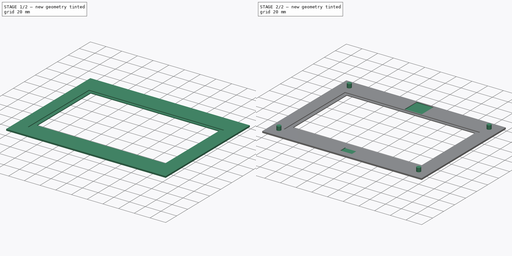
[diagram: build sequence overview — one tinted view per stage of 2, left to right]
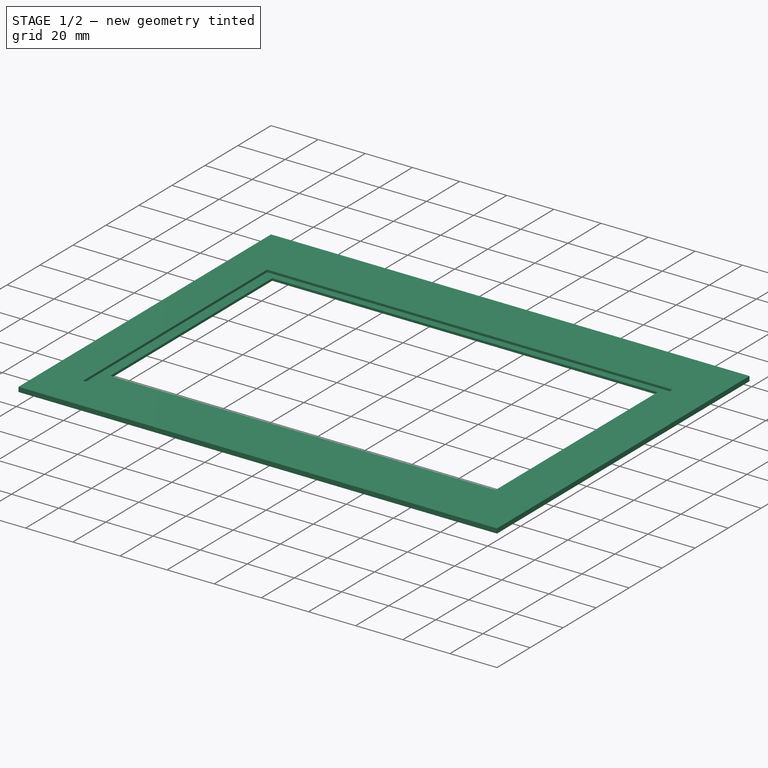
[diagram: stage 1 of 2 — iso view after this stage's code; geometry added in this stage tinted green]
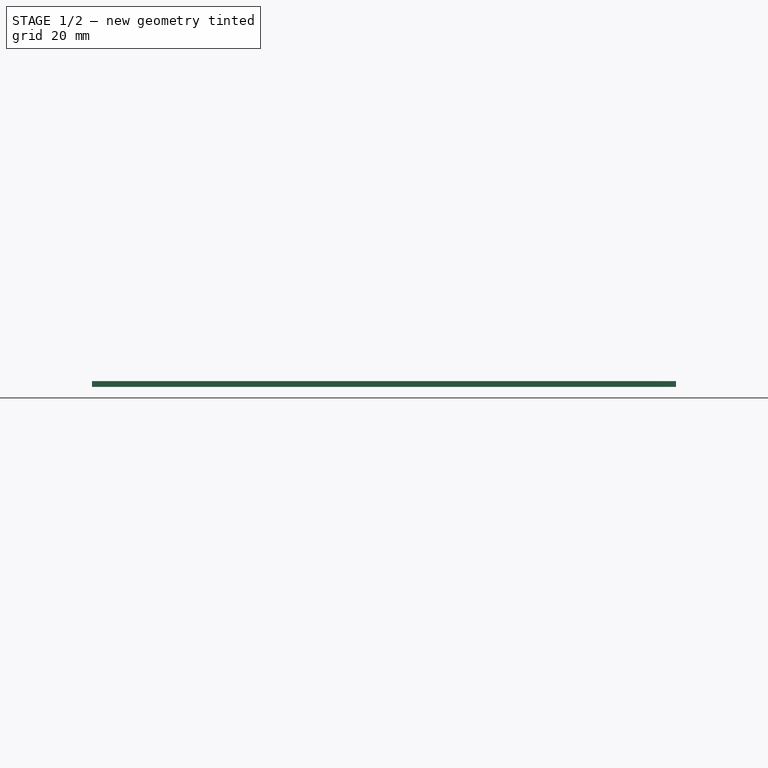
[diagram: stage 1 of 2 — front view after this stage's code; geometry added in this stage tinted green]
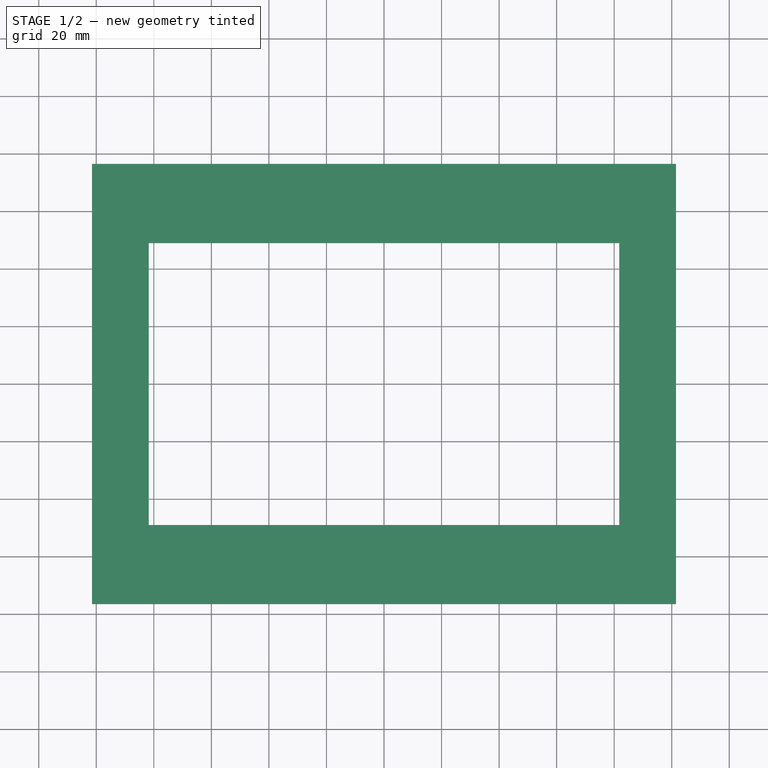
[diagram: stage 1 of 2 — top view after this stage's code; geometry added in this stage tinted green]
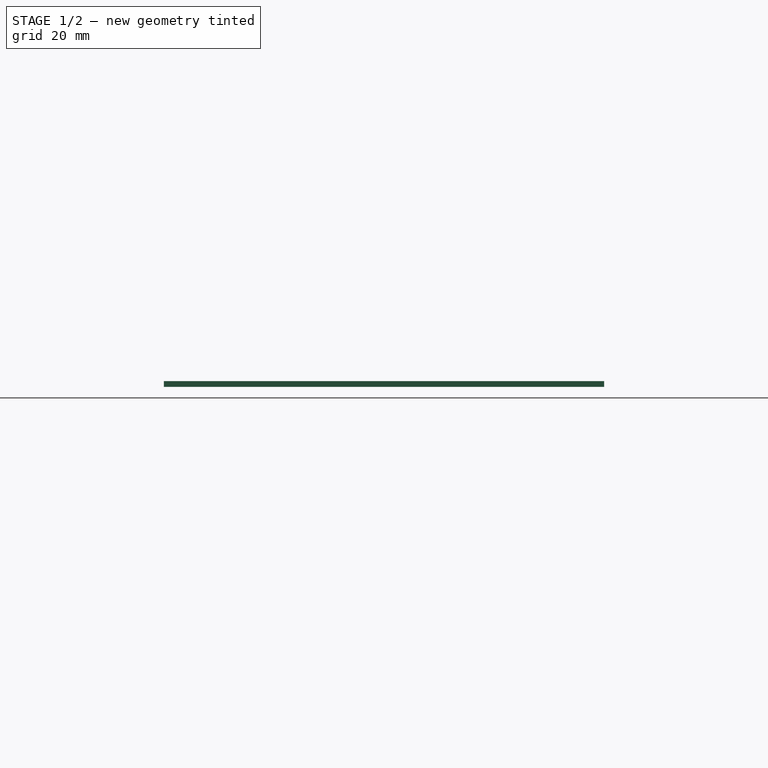
[diagram: stage 1 of 2 — right view after this stage's code; geometry added in this stage tinted green]
FCSTD DOCUMENT  (FreeCAD 0.21R33771 (Git))
Label: Frame75Front
License: All rights reserved
LicenseURL: https://en.wikipedia.org/wiki/All_rights_reserved
objects: Sketcher::SketchObject×4, PartDesign::Pad×2, PartDesign::Pocket×2, PartDesign::Plane×1, PartDesign::Body×1
note: 14 computed .brp shape members not serialized (recipe doc carries the construction recipe); baked Part::Feature solids carry a one-line shape summary decoded from their .brp

FEATURE [PartDesign::Plane] DatumPlane
  Length = 238.247
  MapMode = 5
  ResizeMode = 0
  Support = -> [XY_Plane]
  Width = 188.247
FEATURE [Sketcher::SketchObject] Sketch  label="FrameBaseS"
  AttachmentOffset = pos=(0,0,-2) rot=(0,0,1;0rad)
  FullyConstrained = true
  MapMode = 5
  Placement = pos=(0,0,-2) rot=(0,0,1;0rad)
  Support = -> [DatumPlane]
  sketch-geometry (10):
    g0: LineSegment StartX=-101.5 StartY=-76.5 StartZ=0 EndX=-101.5 EndY=76.5 EndZ=0
    g1: LineSegment StartX=-101.5 StartY=76.5 StartZ=0 EndX=101.5 EndY=76.5 EndZ=0
    g2: LineSegment StartX=101.5 StartY=76.5 StartZ=0 EndX=101.5 EndY=-76.5 EndZ=0
    g3: LineSegment StartX=101.5 StartY=-76.5 StartZ=0 EndX=-101.5 EndY=-76.5 EndZ=0
    g4: GeomPoint X=0 Y=0 Z=0
    g5: LineSegment StartX=-81.75 StartY=-49 StartZ=0 EndX=-81.75 EndY=49 EndZ=0
    g6: LineSegment StartX=-81.75 StartY=49 StartZ=0 EndX=81.75 EndY=49 EndZ=0
    g7: LineSegment StartX=81.75 StartY=49 StartZ=0 EndX=81.75 EndY=-49 EndZ=0
    g8: LineSegment StartX=81.75 StartY=-49 StartZ=0 EndX=-81.75 EndY=-49 EndZ=0
    g9: GeomPoint X=0 Y=0 Z=0
  constraints (24):
    c: Coincident(g0,g1)
    c: Coincident(g1,g2)
    c: Coincident(g2,g3)
    c: Coincident(g3,g0)
    c: Horizontal(g1)
    c: Horizontal(g3)
    c: Vertical(g0)
    c: Vertical(g2)
    c: Symmetric(g1,g0,g4)
    c: Coincident(g4,g-1)
    c: DistanceY(g0,g0) = 153  'Frame Height'
    c: DistanceX(g1,g1) = 203  'Frame Width'
    c: Coincident(g5,g6)
    c: Coincident(g6,g7)
    c: Coincident(g7,g8)
    c: Coincident(g8,g5)
    c: Horizontal(g6)
    c: Horizontal(g8)
    c: Vertical(g5)
    c: Vertical(g7)
    c: Symmetric(g6,g5,g9)
    c: Coincident(g9,g4)
    c: DistanceX(g6,g6) = 163.5  'OpeningWidth'
    c: DistanceY(g5,g5) = 98  'OpeningHeight'
FEATURE [PartDesign::Pad] Pad  label="FrameBase"
  Direction = (0,0,1)
  Length = 2
  Length2 = 10
  Profile = -> Sketch
  ReferenceAxis = -> Sketch [N_Axis]
  Type = 0
FEATURE [Sketcher::SketchObject] Sketch001  label="PegsS"
  ExternalGeometry = -> [Pad]
  FullyConstrained = true
  MapMode = 5
  Support = -> [DatumPlane]
  sketch-geometry (8):
    g0: LineSegment StartX=-89 StartY=64 StartZ=0 EndX=89 EndY=64 EndZ=0
    g1: LineSegment StartX=89 StartY=64 StartZ=0 EndX=89 EndY=-64 EndZ=0
    g2: LineSegment StartX=89 StartY=-64 StartZ=0 EndX=-89 EndY=-64 EndZ=0
    g3: LineSegment StartX=-89 StartY=64 StartZ=0 EndX=-89 EndY=-64 EndZ=0
    g4: Circle CenterX=89 CenterY=64 CenterZ=0 NormalX=0 NormalY=0 NormalZ=1 AngleXU=0 Radius=2.625
    g5: Circle CenterX=-89 CenterY=64 CenterZ=0 NormalX=0 NormalY=0 NormalZ=1 AngleXU=0 Radius=2.625
    g6: Circle CenterX=-89 CenterY=-64 CenterZ=0 NormalX=0 NormalY=0 NormalZ=1 AngleXU=0 Radius=2.625
    g7: Circle CenterX=89 CenterY=-64 CenterZ=0 NormalX=0 NormalY=0 NormalZ=1 AngleXU=0 Radius=2.625
  constraints (20):
    c: Horizontal(g0)
    c: Vertical(g1)
    c: Horizontal(g2)
    c: Vertical(g3)
    c: DistanceX(g-4,g3) = 12.5
    c: DistanceX(g1,g-5) = 12.5
    c: DistanceY(g0,g-4) = 12.5
    c: DistanceY(g-6,g2) = 12.5
    c: Coincident(g0,g3)
    c: Coincident(g1,g0)
    c: Coincident(g2,g3)
    c: Coincident(g1,g2)
    c: Equal(g4,g7)
    c: Equal(g4,g6)
    c: Equal(g4,g5)
    c: Diameter(g4) = 5.25  'PegDiameter'
    c: Coincident(g5,g0)
    c: Coincident(g4,g0)
    c: Coincident(g7,g1)
    c: Coincident(g6,g2)
FEATURE [Sketcher::SketchObject] Sketch002  label="SensorRecessS"
  ExternalGeometry = -> [Pad]
  FullyConstrained = true
  MapMode = 5
  Support = -> [DatumPlane]
  sketch-geometry (10):
    g0: LineSegment StartX=-11 StartY=75 StartZ=0 EndX=-11 EndY=53 EndZ=0
    g1: LineSegment StartX=-11 StartY=53 StartZ=0 EndX=11 EndY=53 EndZ=0
    g2: LineSegment StartX=11 StartY=53 StartZ=0 EndX=11 EndY=75 EndZ=0
    g3: LineSegment StartX=11 StartY=75 StartZ=0 EndX=-11 EndY=75 EndZ=0
    g4: GeomPoint X=0 Y=64 Z=0
    g5: LineSegment StartX=-7.5 StartY=-54 StartZ=0 EndX=-7.5 EndY=-69 EndZ=0
    g6: LineSegment StartX=-7.5 StartY=-69 StartZ=0 EndX=7.5 EndY=-69 EndZ=0
    g7: LineSegment StartX=7.5 StartY=-69 StartZ=0 EndX=7.5 EndY=-54 EndZ=0
    g8: LineSegment StartX=7.5 StartY=-54 StartZ=0 EndX=-7.5 EndY=-54 EndZ=0
    g9: GeomPoint X=0 Y=-61.5 Z=0
  constraints (26):
    c: Coincident(g0,g1)
    c: Coincident(g1,g2)
    c: Coincident(g2,g3)
    c: Coincident(g3,g0)
    c: Horizontal(g1)
    c: Horizontal(g3)
    c: Vertical(g0)
    c: Vertical(g2)
    c: Symmetric(g1,g0,g4)
    c: DistanceX(g3,g3) = 22  'SensorWidth'
    c: DistanceY(g0,g0) = 22  'SensorHeight'
    c: PointOnObject(g4,g-2)
    c: Coincident(g5,g6)
    c: Coincident(g6,g7)
    c: Coincident(g7,g8)
    c: Coincident(g8,g5)
    c: Horizontal(g6)
    c: Horizontal(g8)
    c: Vertical(g5)
    c: Vertical(g7)
    c: Symmetric(g6,g5,g9)
    c: DistanceX(g8,g8) = 15  'CableRecessWidth'
    c: DistanceY(g5,g5) = 15  'CableRecessHeight'
    c: PointOnObject(g9,g-2)
    c: Distance(g4,g-3) = 12.5  'SensorOffsetY'
    c: Distance(g9,g-4) = 15  'CableOffsetY'
FEATURE [Sketcher::SketchObject] Sketch003  label="DisplayRecessS"
  FullyConstrained = true
  MapMode = 5
  Support = -> [DatumPlane]
  sketch-geometry (5):
    g0: LineSegment StartX=-86 StartY=52 StartZ=0 EndX=-86 EndY=-59.5 EndZ=0
    g1: LineSegment StartX=-86 StartY=-59.5 StartZ=0 EndX=86 EndY=-59.5 EndZ=0
    g2: LineSegment StartX=86 StartY=-59.5 StartZ=0 EndX=86 EndY=52 EndZ=0
    g3: LineSegment StartX=86 StartY=52 StartZ=0 EndX=-86 EndY=52 EndZ=0
    g4: GeomPoint X=1e-16 Y=-3.75 Z=0
  constraints (13):
    c: Coincident(g0,g1)
    c: Coincident(g1,g2)
    c: Coincident(g2,g3)
    c: Coincident(g3,g0)
    c: Horizontal(g1)
    c: Horizontal(g3)
    c: Vertical(g0)
    c: Vertical(g2)
    c: Symmetric(g1,g0,g4)
    c: DistanceX(g3,g3) = 172  'RecessWidth'
    c: DistanceY(g0,g0) = 111.5  'RecessHeight'
    c: DistanceX(g-1,g4) = 0  'RecessXOffset'
    c: DistanceY(g-1,g4) = -3.75  'RecessYOffset'
FEATURE [PartDesign::Pocket] Pocket001  label="DisplayRecess"
  BaseFeature = -> Pad
  Direction = (0,0,-1)
  Length = 1
  Length2 = 5
  Profile = -> Sketch003
  ReferenceAxis = -> Sketch003 [N_Axis]
  Type = 0
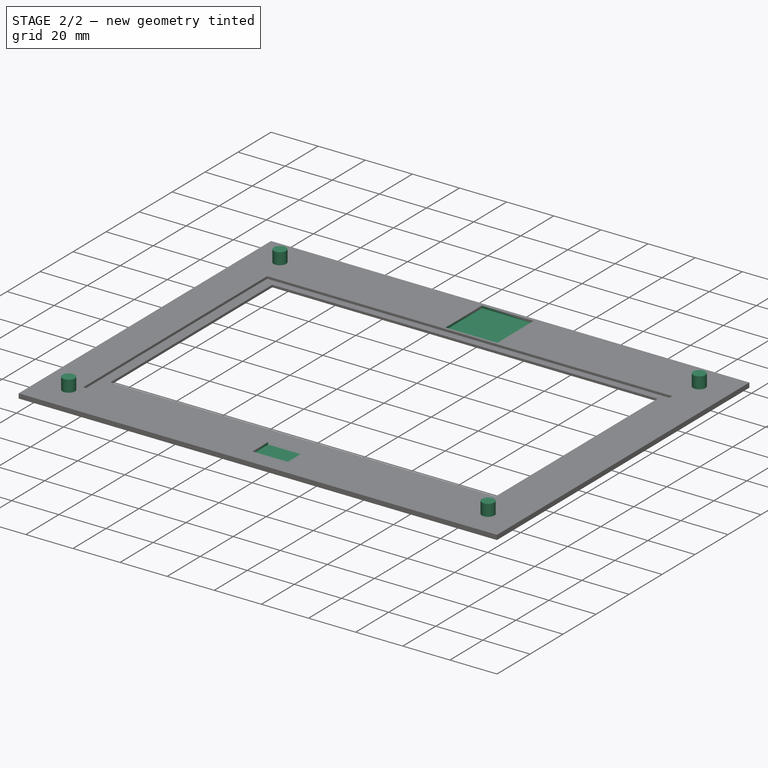
[diagram: stage 2 of 2 — iso view after this stage's code; geometry added in this stage tinted green]
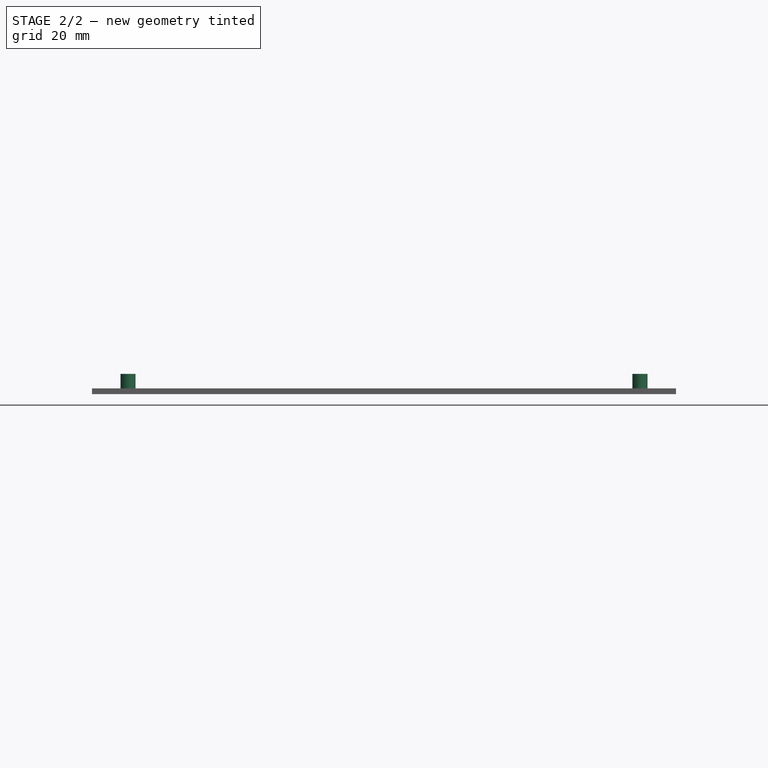
[diagram: stage 2 of 2 — front view after this stage's code; geometry added in this stage tinted green]
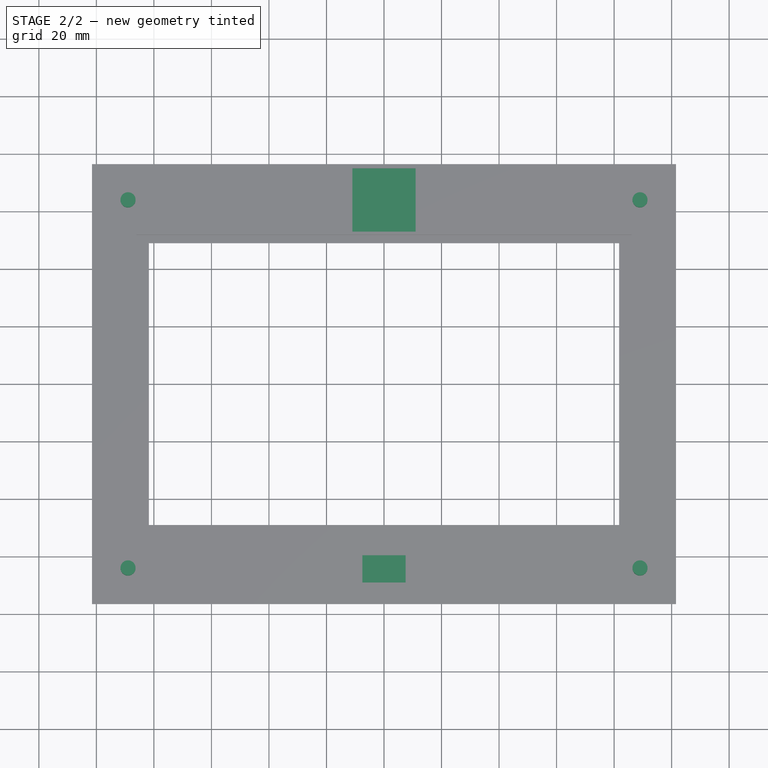
[diagram: stage 2 of 2 — top view after this stage's code; geometry added in this stage tinted green]
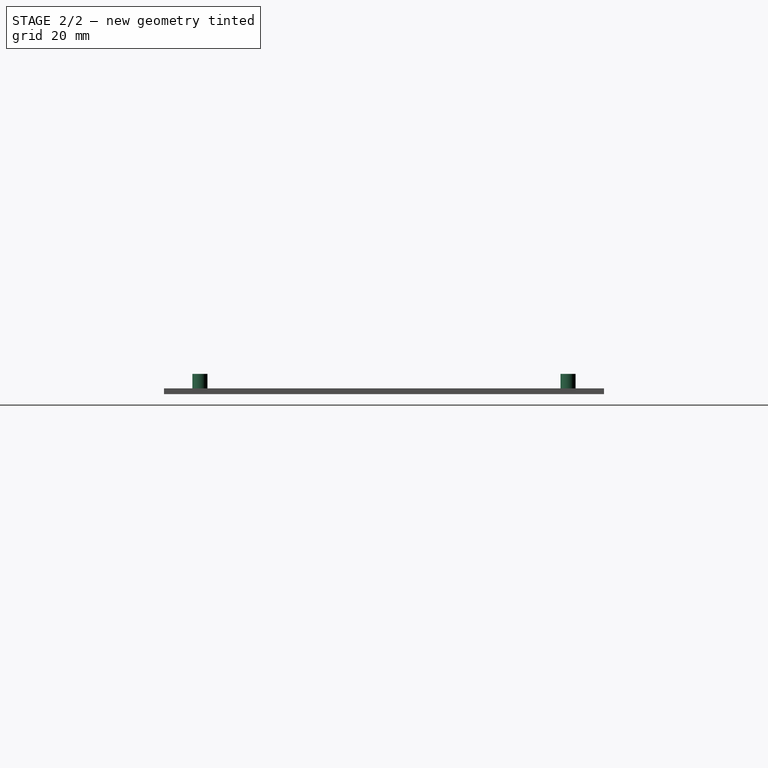
[diagram: stage 2 of 2 — right view after this stage's code; geometry added in this stage tinted green]
FEATURE [PartDesign::Pocket] Pocket  label="SensorRecess"
  BaseFeature = -> Pocket001
  Direction = (0,0,-1)
  Length = 1
  Length2 = 5
  Profile = -> Sketch002
  ReferenceAxis = -> Sketch002 [N_Axis]
  Type = 0
FEATURE [PartDesign::Pad] Pad001  label="Pegs"
  BaseFeature = -> Pocket
  Direction = (0,0,1)
  Length = 5
  Length2 = 10
  Profile = -> Sketch001
  ReferenceAxis = -> Sketch001 [N_Axis]
  Type = 0
FEATURE [PartDesign::Body] Body  label="FrameFront"
  Group = -> [DatumPlane,Sketch,Pad,Pocket001,Sketch001,Sketch002,Pocket,Pad001,Sketch003]
  Origin = -> Origin
  Tip = -> Pad001
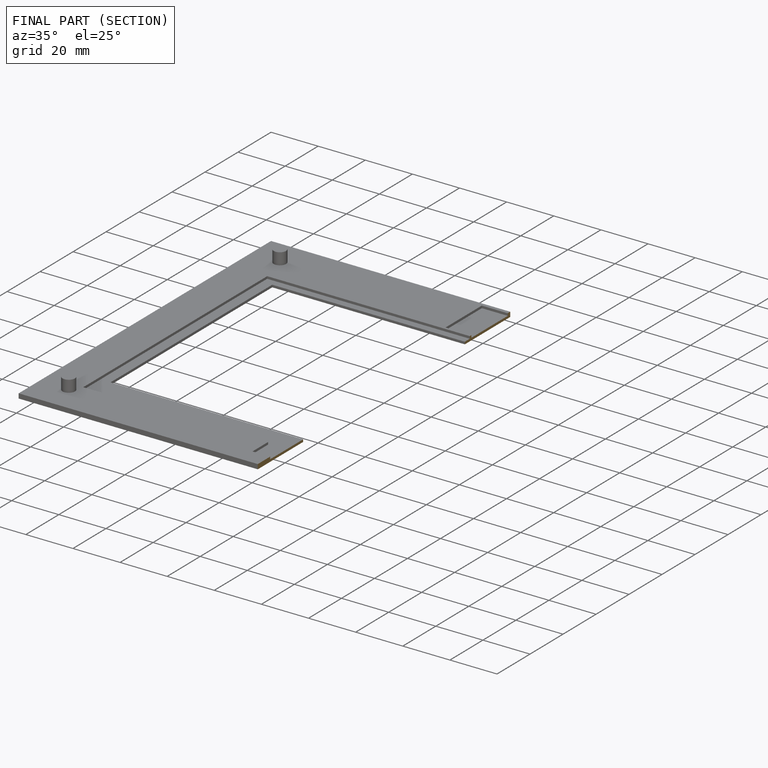
[diagram: finished part — half-section view (interior)]
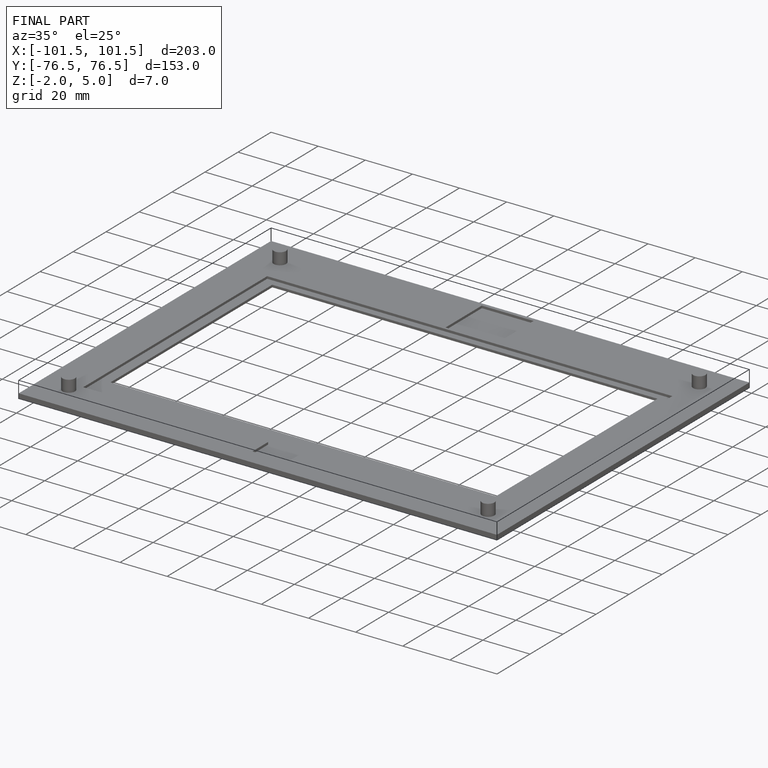
[diagram: finished part — iso view with bounding-box wireframe]
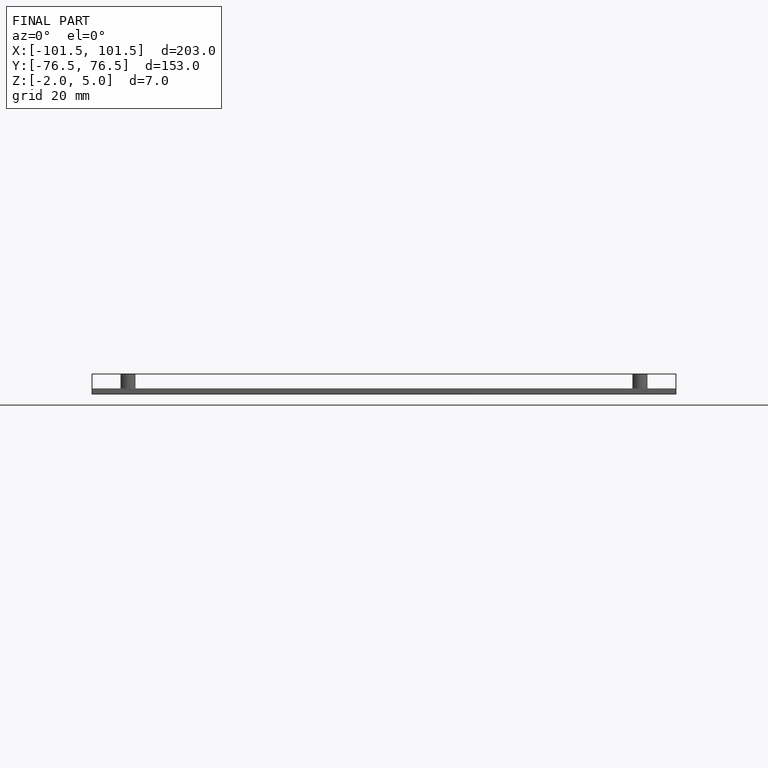
[diagram: finished part — front view with bounding-box wireframe]
